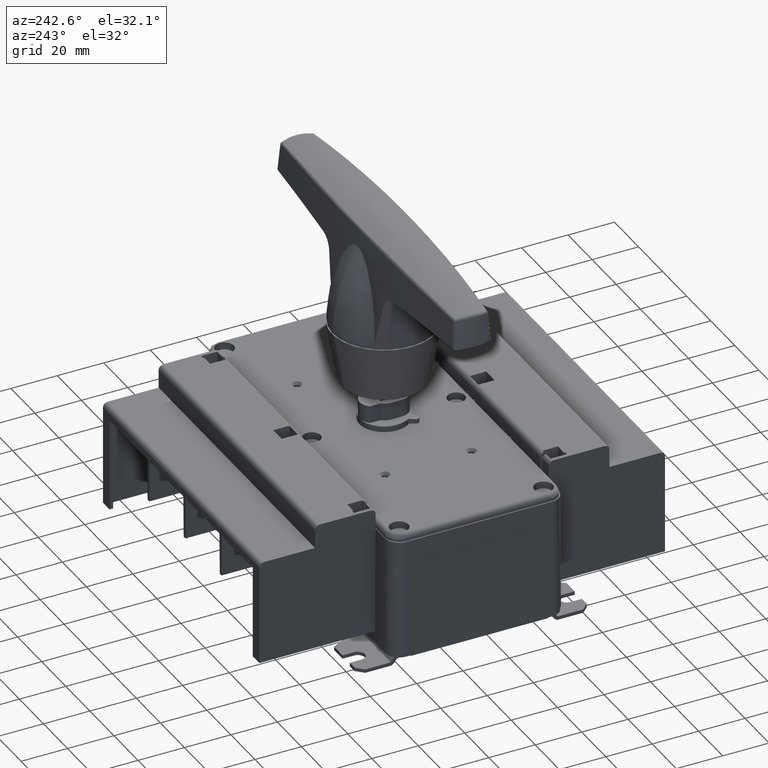
[diagram: clean part render]
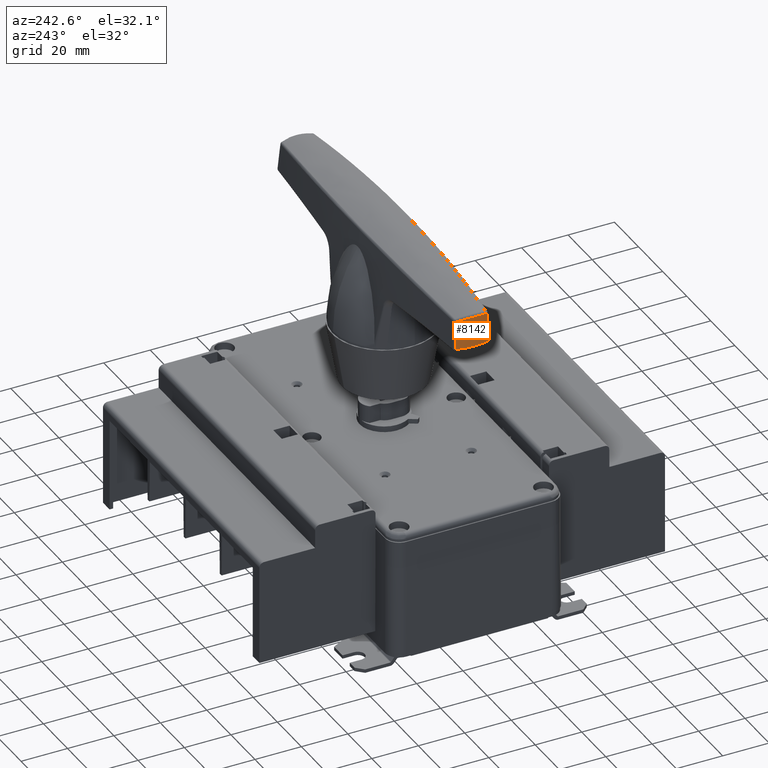
[diagram: same view with one face highlighted and labeled with its STEP entity id]
A machine part, auxiliary view. The second image highlights one B-rep face of the part: STEP entity #8142.
In plain terms, the highlighted face is a freeform B-spline surface patch.
Its self-contained STEP definition (entity closure, byte-faithful):
#925 = CARTESIAN_POINT ( 'NONE',  ( -80.63555425498229600, 10.21924946614886000, 87.10375818867559900 ) ) ;
#980 = EDGE_CURVE ( 'NONE', #6526, #25444, #40570, .T. ) ;
#1073 = CARTESIAN_POINT ( 'NONE',  ( -80.97697694906079800, 8.188943867635170900, 87.10201427401749200 ) ) ;
#1218 = CARTESIAN_POINT ( 'NONE',  ( -80.50136225015069200, -0.6118567184152300400, 87.12069992362579300 ) ) ;
#1375 = CARTESIAN_POINT ( 'NONE',  ( -80.77089470783190000, 9.536701279573719600, 87.10284479110640600 ) ) ;
#2200 = CARTESIAN_POINT ( 'NONE',  ( -79.55717809976120200, 8.964645193554009200, 99.26293896370222600 ) ) ;
#2342 = CARTESIAN_POINT ( 'NONE',  ( -81.26729967193300300, 6.856149463535409400, 85.96620722571660200 ) ) ;
#2463 = CARTESIAN_POINT ( 'NONE',  ( -79.24930688743060600, 10.36722834439899900, 99.12778251195490500 ) ) ;
#2622 = CARTESIAN_POINT ( 'NONE',  ( -80.43048898870159700, -1.292789034861044000, 86.01081721237800100 ) ) ;
#3844 = ORIENTED_EDGE ( 'NONE', *, *, #29496, .F. ) ;
#4148 = CARTESIAN_POINT ( 'NONE',  ( -78.26946656681119000, 13.29665890073589900, 98.68986772537969900 ) ) ;
#4589 = CARTESIAN_POINT ( 'NONE',  ( -80.76548068014237500, 0.4756312527818009600, 87.11509660754735800 ) ) ;
#4697 = ORIENTED_EDGE ( 'NONE', *, *, #16883, .F. ) ;
#5703 = CARTESIAN_POINT ( 'NONE',  ( -80.76364331649779200, 0.05439092935166490300, 86.00272666431259000 ) ) ;
#6345 = CARTESIAN_POINT ( 'NONE',  ( -80.13624909329580200, 12.02207322502065900, 87.10896776433979500 ) ) ;
#6526 = VERTEX_POINT ( 'NONE', #24247 ) ;
#6629 = CARTESIAN_POINT ( 'NONE',  ( -80.44752990366029600, 10.89814244335802100, 87.10571996943009800 ) ) ;
#7425 = ORIENTED_EDGE ( 'NONE', *, *, #980, .F. ) ;
#8142 = ADVANCED_FACE ( 'NONE', ( #34602 ), #20281, .F. ) ;
#8744 = CARTESIAN_POINT ( 'NONE',  ( -79.93893267109290000, 4.501563504029197900, 99.26218139644893800 ) ) ;
#8759 = CARTESIAN_POINT ( 'NONE',  ( -80.23278759123493800, 0.2163136943287877200, 92.69848886524424400 ) ) ;
#8874 = CARTESIAN_POINT ( 'NONE',  ( -78.46913290744380700, 12.78986532817300600, 98.79255054828532000 ) ) ;
#9155 = CARTESIAN_POINT ( 'NONE',  ( -79.17842486278078700, 10.64882322544110200, 99.09789694558300300 ) ) ;
#10647 = CARTESIAN_POINT ( 'NONE',  ( -80.20513619139030900, -0.4214073339125675200, 90.98459186183370700 ) ) ;
#10669 = CARTESIAN_POINT ( 'NONE',  ( -78.66470779325540300, 13.60016989891784100, 94.84209892300660300 ) ) ;
#11106 = B_SPLINE_CURVE_WITH_KNOTS ( 'NONE', 3,
 ( #40512, #37295, #10669, #4148 ),
 .UNSPECIFIED., .F., .F.,
 ( 4, 4 ),
 ( 0.0000000000000000000, 1.000000000000000000 ),
 .UNSPECIFIED. ) ;
#11406 = CARTESIAN_POINT ( 'NONE',  ( -81.16172939918040200, 6.199272897498110200, 87.10205908702390300 ) ) ;
#11956 = CARTESIAN_POINT ( 'NONE',  ( -80.68847106209682400, 6.807007978310815900, 92.66002351323598400 ) ) ;
#12098 = CARTESIAN_POINT ( 'NONE',  ( -78.59334968523649000, 14.47736052692528800, 92.70713539002983300 ) ) ;
#12204 = CARTESIAN_POINT ( 'NONE',  ( -78.93671663258659500, 11.47119562388694200, 98.99703125257242700 ) ) ;
#14427 = CARTESIAN_POINT ( 'NONE',  ( -80.44752990366029600, 10.89814244335802100, 87.10571996943009800 ) ) ;
#15269 = CARTESIAN_POINT ( 'NONE',  ( -79.61311180134497100, 1.096164180206789900, 98.88143760313521100 ) ) ;
#15536 = CARTESIAN_POINT ( 'NONE',  ( -79.74426475502369300, 1.928559627306393400, 98.99677960822920400 ) ) ;
#15556 = CARTESIAN_POINT ( 'NONE',  ( -79.48401657308770000, 0.4284069777017749400, 99.37175677322991900 ) ) ;
#15843 = CARTESIAN_POINT ( 'NONE',  ( -79.88406243002444300, 6.738715163761271200, 99.33079405389352700 ) ) ;
#16883 = EDGE_CURVE ( 'NONE', #29894, #29298, #26340, .T. ) ;
#17454 = CARTESIAN_POINT ( 'NONE',  ( -81.23083712998848700, 4.169369504721864800, 87.10275238252619100 ) ) ;
#17463 = EDGE_CURVE ( 'NONE', #25444, #23999, #19372, .T. ) ;
#18574 = CARTESIAN_POINT ( 'NONE',  ( -80.44752990366029600, 10.89814244335802100, 87.10571996943009800 ) ) ;
#18589 = CARTESIAN_POINT ( 'NONE',  ( -79.78297725927228600, 2.209236193395967900, 99.03222365774740900 ) ) ;
#18612 = CARTESIAN_POINT ( 'NONE',  ( -78.23866480428918600, -0.4868588003076039800, 106.0252320816692000 ) ) ;
#18729 = CARTESIAN_POINT ( 'NONE',  ( -78.26946656681119000, 13.29665890073589900, 98.68986772537969900 ) ) ;
#18883 = CARTESIAN_POINT ( 'NONE',  ( -80.18396904627738300, 10.81734632978298500, 92.68132869022420600 ) ) ;
#19005 = CARTESIAN_POINT ( 'NONE',  ( -79.86259440641080700, 5.629026464847280300, 99.32379564156153200 ) ) ;
#19030 = CARTESIAN_POINT ( 'NONE',  ( -79.07719527304730900, 3.045012177718285300, 105.9945424119505900 ) ) ;
#19372 = B_SPLINE_CURVE_WITH_KNOTS ( 'NONE', 3,
 ( #23972, #20209, #10647, #40328 ),
 .UNSPECIFIED., .F., .F.,
 ( 4, 4 ),
 ( 0.0000000000000000000, 1.000000000000000000 ),
 .UNSPECIFIED. ) ;
#19718 = CARTESIAN_POINT ( 'NONE',  ( -79.25229675670850300, 14.10794794765944200, 87.12068833958528600 ) ) ;
#20209 = CARTESIAN_POINT ( 'NONE',  ( -79.83634461150219900, -0.2104960631364565000, 94.84215704130359400 ) ) ;
#20253 = EDGE_CURVE ( 'NONE', #29298, #6526, #11106, .T. ) ;
#20281 =( BOUNDED_SURFACE ( )  B_SPLINE_SURFACE ( 3, 3, ( 
 ( #18612, #41932, #19030, #25304, #32425, #28927, #35521 ),
 ( #35799, #15556, #38875, #15843, #28653, #39164, #25578 ),
 ( #25858, #8759, #22239, #11956, #18883, #32016, #12098 ),
 ( #2622, #5703, #39017, #2342, #35377, #42346, #22376 ) ),
 .UNSPECIFIED., .F., .F., .T. ) 
 B_SPLINE_SURFACE_WITH_KNOTS ( ( 4, 4 ),
 ( 4, 1, 1, 1, 4 ),
 ( 0.0000000000000000000, 1.000000000000000000 ),
 ( 0.0000000000000000000, 0.2500000000000000000, 0.5000000000000000000, 0.7500000000000000000, 1.000000000000000000 ),
 .UNSPECIFIED. ) 
 GEOMETRIC_REPRESENTATION_ITEM ( )  RATIONAL_B_SPLINE_SURFACE ( (
 ( 1.000000000000000000, 1.000000000000000000, 1.000000000000000000, 1.000000000000000000, 1.000000000000000000, 1.000000000000000000, 1.000000000000000000),
 ( 0.9996239398420699900, 0.9996239398420699900, 0.9996239851966570700, 0.9996240532285389800, 0.9996239851966570700, 0.9996239398420699900, 0.9996239398420699900),
 ( 0.9996239398420699900, 0.9996239398420699900, 0.9996239851966570700, 0.9996240532285389800, 0.9996239851966570700, 0.9996239398420699900, 0.9996239398420699900),
 ( 1.000000000000000000, 1.000000000000000000, 1.000000000000000000, 1.000000000000000000, 1.000000000000000000, 1.000000000000000000, 1.000000000000000000) ) ) 
 REPRESENTATION_ITEM ( '' )  SURFACE ( )  );
#20385 = EDGE_CURVE ( 'NONE', #21743, #29894, #37280, .T. ) ;
#21393 = CARTESIAN_POINT ( 'NONE',  ( -81.21283155138030500, 3.478292403614380300, 87.10365893259320600 ) ) ;
#21743 = VERTEX_POINT ( 'NONE', #37976 ) ;
#22239 = CARTESIAN_POINT ( 'NONE',  ( -80.86869220142409600, 2.825296190218555400, 92.68119581703540200 ) ) ;
#22353 = CARTESIAN_POINT ( 'NONE',  ( -78.66712095839557200, 12.27205822203570100, 98.88151121211380700 ) ) ;
#22376 = CARTESIAN_POINT ( 'NONE',  ( -79.06712960286519400, 14.76597301526352100, 86.01081721237810000 ) ) ;
#23264 = B_SPLINE_CURVE_WITH_KNOTS ( 'NONE', 3,
 ( #1218, #4589, #31154, #37873 ),
 .UNSPECIFIED., .F., .F.,
 ( 4, 4 ),
 ( 0.0000000000000000000, 1.000000000000000000 ),
 .UNSPECIFIED. ) ;
#23972 = CARTESIAN_POINT ( 'NONE',  ( -79.39547190568009700, 0.02197406023798655100, 98.68994675916980000 ) ) ;
#23999 = VERTEX_POINT ( 'NONE', #30417 ) ;
#24247 = CARTESIAN_POINT ( 'NONE',  ( -78.26946656681119000, 13.29665890073589900, 98.68986772537969900 ) ) ;
#24296 = CARTESIAN_POINT ( 'NONE',  ( -81.04822404673851100, 7.521503032334559100, 87.10208723940398600 ) ) ;
#25304 = CARTESIAN_POINT ( 'NONE',  ( -78.85498104411351500, 6.651348045306360900, 105.9709950567239900 ) ) ;
#25444 = VERTEX_POINT ( 'NONE', #41195 ) ;
#25578 = CARTESIAN_POINT ( 'NONE',  ( -77.91823261522903000, 14.08924923628175400, 99.38111683164177600 ) ) ;
#25858 = CARTESIAN_POINT ( 'NONE',  ( -79.91483527014867100, -1.088177643888892800, 92.70713539002972000 ) ) ;
#26086 = CARTESIAN_POINT ( 'NONE',  ( -79.69445085300370100, 13.08782836679369900, 87.11508273902840900 ) ) ;
#26340 = B_SPLINE_CURVE_WITH_KNOTS ( 'NONE', 3,
 ( #6629, #6345, #26086, #29878 ),
 .UNSPECIFIED., .F., .F.,
 ( 4, 4 ),
 ( 0.0000000000000000000, 1.000000000000000000 ),
 .UNSPECIFIED. ) ;
#28653 = CARTESIAN_POINT ( 'NONE',  ( -79.42730474901206600, 10.58770939797585000, 99.35316953105420600 ) ) ;
#28927 = CARTESIAN_POINT ( 'NONE',  ( -77.51341084504069600, 12.50097206622082200, 106.0150464828258000 ) ) ;
#29049 = CARTESIAN_POINT ( 'NONE',  ( -79.02196518492708300, 11.20019453474548300, 99.03254334989050300 ) ) ;
#29298 = VERTEX_POINT ( 'NONE', #19718 ) ;
#29496 = EDGE_CURVE ( 'NONE', #23999, #21743, #23264, .T. ) ;
#29878 = CARTESIAN_POINT ( 'NONE',  ( -79.25229675670850300, 14.10794794765944200, 87.12068833958528600 ) ) ;
#29894 = VERTEX_POINT ( 'NONE', #18574 ) ;
#30417 = CARTESIAN_POINT ( 'NONE',  ( -80.50136225015069200, -0.6118567184152300400, 87.12069992362579300 ) ) ;
#31154 = CARTESIAN_POINT ( 'NONE',  ( -81.02276854860156200, 1.606505735032140100, 87.10892952476587000 ) ) ;
#31450 = ORIENTED_EDGE ( 'NONE', *, *, #20253, .F. ) ;
#31860 = CARTESIAN_POINT ( 'NONE',  ( -79.50589925119297200, 0.5540079613909585400, 98.79255781770811500 ) ) ;
#32016 = CARTESIAN_POINT ( 'NONE',  ( -79.12355615957035600, 13.25735573702096000, 92.69853315630715000 ) ) ;
#32132 = CARTESIAN_POINT ( 'NONE',  ( -79.86861528008410000, 3.066886165033753100, 99.12725015184619800 ) ) ;
#32425 = CARTESIAN_POINT ( 'NONE',  ( -78.45515244164450100, 10.29876219283698000, 105.9946752851391900 ) ) ;
#32514 = ORIENTED_EDGE ( 'NONE', *, *, #17463, .F. ) ;
#34374 = CARTESIAN_POINT ( 'NONE',  ( -81.20534040004879700, 5.529874463714779900, 87.10195418631570900 ) ) ;
#34602 = FACE_OUTER_BOUND ( 'NONE', #43046, .T. ) ;
#34878 = ORIENTED_EDGE ( 'NONE', *, *, #20385, .F. ) ;
#35377 = CARTESIAN_POINT ( 'NONE',  ( -80.72429182654249800, 10.98741399634864100, 85.98667844137079900 ) ) ;
#35495 = CARTESIAN_POINT ( 'NONE',  ( -79.84538812405357100, 2.777724664852903500, 99.09743842846741300 ) ) ;
#35521 = CARTESIAN_POINT ( 'NONE',  ( -77.04254004673879300, 13.60207700291270100, 106.0252320816690000 ) ) ;
#35799 = CARTESIAN_POINT ( 'NONE',  ( -79.18395235273250400, -0.8194331682811280000, 99.38111683164177600 ) ) ;
#37280 = B_SPLINE_CURVE_WITH_KNOTS ( 'NONE', 3,
 ( #37877, #21393, #17454, #34374, #11406, #24296, #1073, #1375, #925, #14427 ),
 .UNSPECIFIED., .F., .F.,
 ( 4, 2, 2, 2, 4 ),
 ( 0.0000000000000000000, 0.2500000000000003300, 0.5000000000000002200, 0.7500000000000007800, 1.000000000000000000 ),
 .UNSPECIFIED. ) ;
#37295 = CARTESIAN_POINT ( 'NONE',  ( -78.99253996344799600, 13.87026228480263900, 90.98455597708130000 ) ) ;
#37873 = CARTESIAN_POINT ( 'NONE',  ( -81.14139508613740800, 2.774768723226835200, 87.10563992074860100 ) ) ;
#37877 = CARTESIAN_POINT ( 'NONE',  ( -81.14139508613740800, 2.774768723226835200, 87.10563992074860100 ) ) ;
#37976 = CARTESIAN_POINT ( 'NONE',  ( -81.14139508613740800, 2.774768723226835200, 87.10563992074860100 ) ) ;
#38875 = CARTESIAN_POINT ( 'NONE',  ( -80.08414498424964700, 2.924087096833107900, 99.35303665786551600 ) ) ;
#39001 = CARTESIAN_POINT ( 'NONE',  ( -79.67293035060519900, 7.842349617520370400, 99.32420692725853000 ) ) ;
#39017 = CARTESIAN_POINT ( 'NONE',  ( -81.42995197208830400, 2.748750857777824600, 85.98654556818199500 ) ) ;
#39137 = CARTESIAN_POINT ( 'NONE',  ( -79.39547190568009700, 0.02197406023798655100, 98.68994675916980000 ) ) ;
#39164 = CARTESIAN_POINT ( 'NONE',  ( -78.42125667924358400, 12.92206923505297800, 99.37180106429274000 ) ) ;
#40328 = CARTESIAN_POINT ( 'NONE',  ( -80.50136225015069200, -0.6118567184152300400, 87.12069992362579300 ) ) ;
#40512 = CARTESIAN_POINT ( 'NONE',  ( -79.25229675670850300, 14.10794794765944200, 87.12068833958528600 ) ) ;
#40570 = B_SPLINE_CURVE_WITH_KNOTS ( 'NONE', 3,
 ( #18729, #8874, #22353, #12204, #29049, #9155, #2463, #2200, #39001, #19005, #8744, #32132, #35495, #18589, #15536, #15269, #31860, #39137 ),
 .UNSPECIFIED., .F., .F.,
 ( 4, 2, 2, 2, 2, 2, 2, 2, 4 ),
 ( 0.0000000000000000000, 0.1250000000000002800, 0.1874999999999997200, 0.2499999999999992000, 0.4999999999999998900, 0.7499999999999997800, 0.8125000000000007800, 0.8749999999999981100, 1.000000000000000000 ),
 .UNSPECIFIED. ) ;
#41195 = CARTESIAN_POINT ( 'NONE',  ( -79.39547190568009700, 0.02197406023798655100, 98.68994675916980000 ) ) ;
#41932 = CARTESIAN_POINT ( 'NONE',  ( -78.51817496054251000, 0.6904315257007820300, 106.0150021917630000 ) ) ;
#42346 = CARTESIAN_POINT ( 'NONE',  ( -79.61951701075760500, 13.50645334229192000, 86.00277095537561000 ) ) ;
#43046 = EDGE_LOOP ( 'NONE', ( #4697, #34878, #3844, #32514, #7425, #31450 ) ) ;